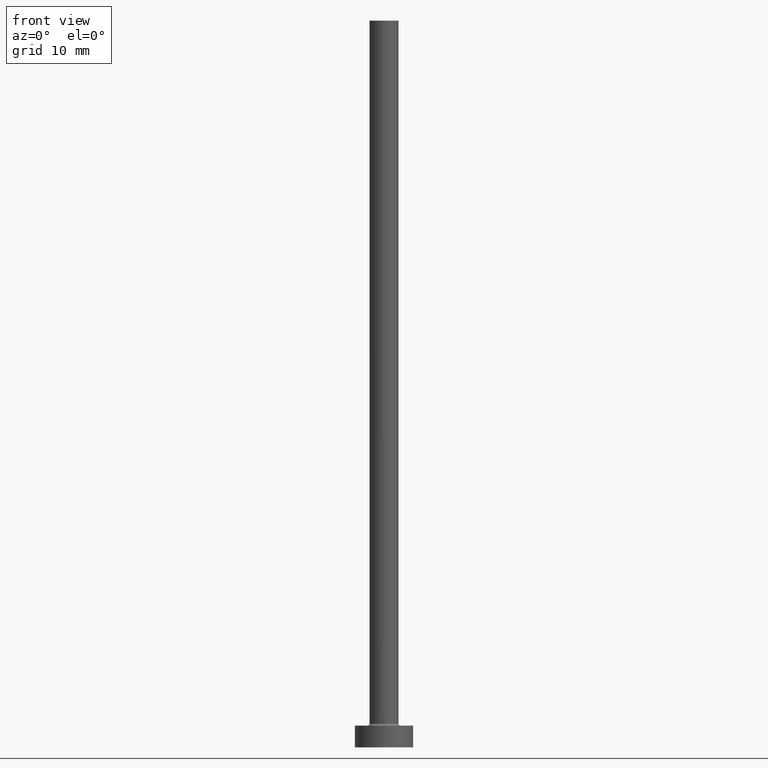
[diagram: clean part render]
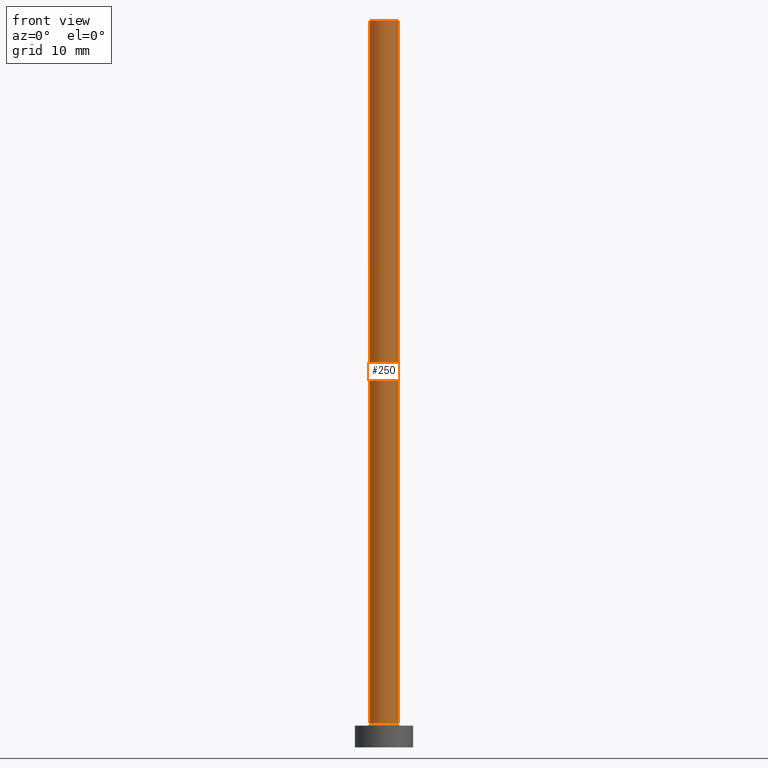
[diagram: same view with one face highlighted and labeled with its STEP entity id]
A machine part, front view. The second image highlights one B-rep face of the part: STEP entity #250.
In plain terms, the highlighted cylindrical surface (edge-blend (fillet) strip) has radius 2 mm, axis along (-0, -0, -1).
Its self-contained STEP definition (entity closure, byte-faithful):
#7 = EDGE_CURVE ( 'NONE', #207, #121, #343, .T. ) ;
#27 = CARTESIAN_POINT ( 'NONE',  ( 0.000000000000000000, 0.000000000000000000, 100.0000000000000000 ) ) ;
#31 = DIRECTION ( 'NONE',  ( 0.000000000000000000, 0.000000000000000000, 1.000000000000000000 ) ) ;
#56 = CARTESIAN_POINT ( 'NONE',  ( -2.000000000000000000, 0.000000000000000000, 100.0000000000000000 ) ) ;
#69 = CYLINDRICAL_SURFACE ( 'NONE', #414, 2.000000000000000000 ) ;
#78 = DIRECTION ( 'NONE',  ( 1.000000000000000000, 0.000000000000000000, 0.000000000000000000 ) ) ;
#104 = VECTOR ( 'NONE', #410, 1000.000000000000000 ) ;
#121 = VERTEX_POINT ( 'NONE', #383 ) ;
#123 = ORIENTED_EDGE ( 'NONE', *, *, #7, .F. ) ;
#131 = DIRECTION ( 'NONE',  ( -0.000000000000000000, -0.000000000000000000, -1.000000000000000000 ) ) ;
#136 = CARTESIAN_POINT ( 'NONE',  ( 2.000000000000000000, 2.449293598294705921E-16, 3.299999999999997158 ) ) ;
#137 = AXIS2_PLACEMENT_3D ( 'NONE', #355, #31, #172 ) ;
#148 = ORIENTED_EDGE ( 'NONE', *, *, #298, .T. ) ;
#170 = EDGE_LOOP ( 'NONE', ( #263, #123, #148, #334 ) ) ;
#171 = DIRECTION ( 'NONE',  ( -1.000000000000000000, 0.000000000000000000, 0.000000000000000000 ) ) ;
#172 = DIRECTION ( 'NONE',  ( 1.000000000000000000, 0.000000000000000000, 0.000000000000000000 ) ) ;
#187 = VERTEX_POINT ( 'NONE', #346 ) ;
#204 = CIRCLE ( 'NONE', #273, 2.000000000000000000 ) ;
#207 = VERTEX_POINT ( 'NONE', #56 ) ;
#220 = LINE ( 'NONE', #360, #104 ) ;
#222 = VECTOR ( 'NONE', #396, 1000.000000000000000 ) ;
#235 = DIRECTION ( 'NONE',  ( 0.000000000000000000, 0.000000000000000000, 1.000000000000000000 ) ) ;
#250 = ADVANCED_FACE ( 'NONE', ( #348 ), #69, .T. ) ;
#263 = ORIENTED_EDGE ( 'NONE', *, *, #329, .F. ) ;
#273 = AXIS2_PLACEMENT_3D ( 'NONE', #336, #235, #78 ) ;
#290 = EDGE_CURVE ( 'NONE', #187, #376, #204, .T. ) ;
#296 = LINE ( 'NONE', #438, #222 ) ;
#298 = EDGE_CURVE ( 'NONE', #207, #187, #296, .T. ) ;
#329 = EDGE_CURVE ( 'NONE', #121, #376, #220, .T. ) ;
#334 = ORIENTED_EDGE ( 'NONE', *, *, #290, .T. ) ;
#336 = CARTESIAN_POINT ( 'NONE',  ( 0.000000000000000000, 0.000000000000000000, 3.299999999999997158 ) ) ;
#343 = CIRCLE ( 'NONE', #137, 2.000000000000000000 ) ;
#346 = CARTESIAN_POINT ( 'NONE',  ( -2.000000000000000000, 0.000000000000000000, 3.299999999999997158 ) ) ;
#348 = FACE_OUTER_BOUND ( 'NONE', #170, .T. ) ;
#355 = CARTESIAN_POINT ( 'NONE',  ( 0.000000000000000000, 0.000000000000000000, 100.0000000000000000 ) ) ;
#360 = CARTESIAN_POINT ( 'NONE',  ( 2.000000000000000000, 2.449293598294705921E-16, 100.0000000000000000 ) ) ;
#376 = VERTEX_POINT ( 'NONE', #136 ) ;
#383 = CARTESIAN_POINT ( 'NONE',  ( 2.000000000000000000, 2.449293598294705921E-16, 100.0000000000000000 ) ) ;
#396 = DIRECTION ( 'NONE',  ( -0.000000000000000000, -0.000000000000000000, -1.000000000000000000 ) ) ;
#410 = DIRECTION ( 'NONE',  ( -0.000000000000000000, -0.000000000000000000, -1.000000000000000000 ) ) ;
#414 = AXIS2_PLACEMENT_3D ( 'NONE', #27, #131, #171 ) ;
#438 = CARTESIAN_POINT ( 'NONE',  ( -2.000000000000000000, 0.000000000000000000, 100.0000000000000000 ) ) ;